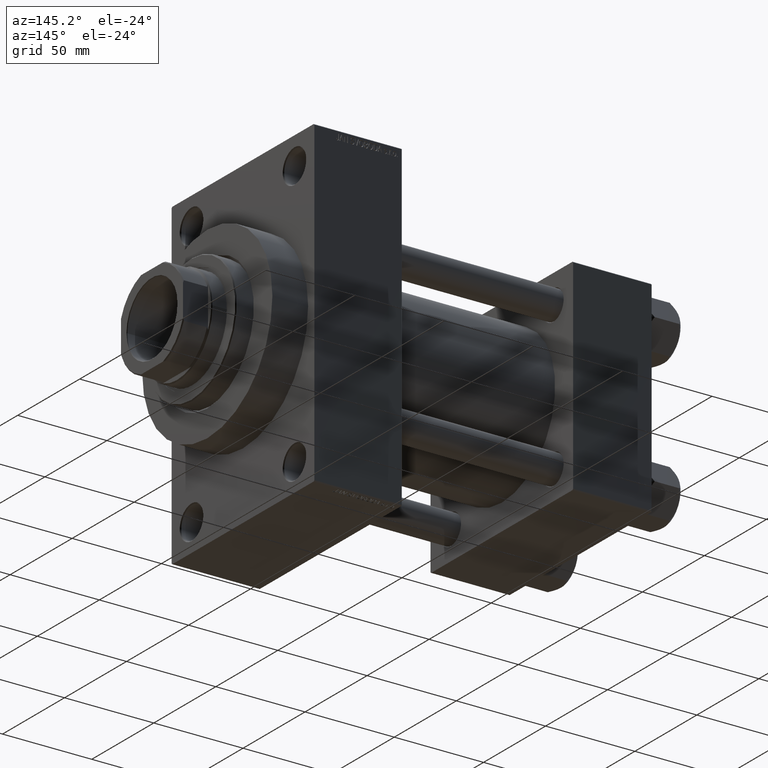
[diagram: clean part render]
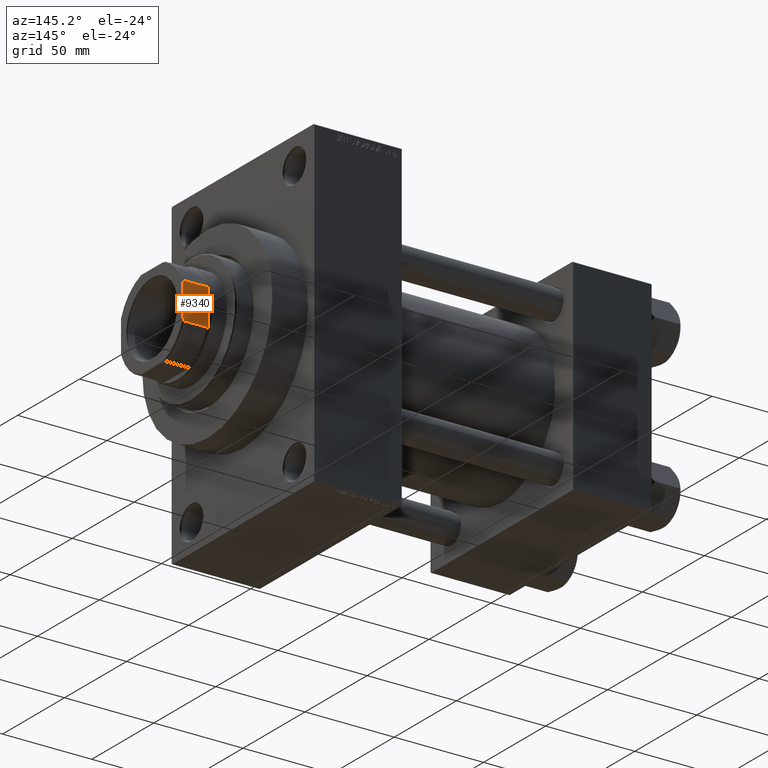
[diagram: same view with one face highlighted and labeled with its STEP entity id]
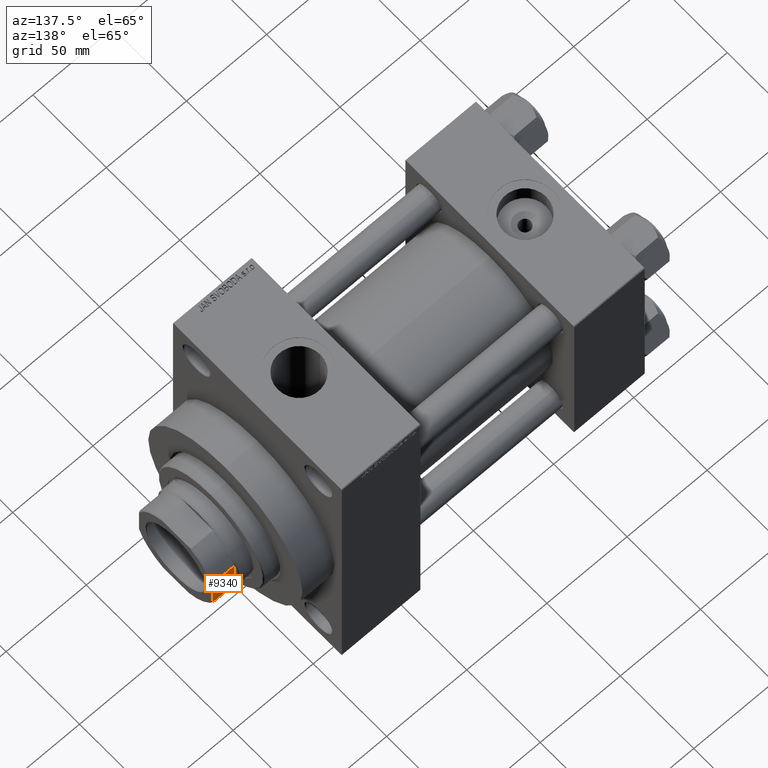
[diagram: same view with one face highlighted and labeled with its STEP entity id]
A machine part, auxiliary view. The second image highlights one B-rep face of the part: STEP entity #9340.
A second angle (auxiliary view) of the same face is appended — the face is thin or edge-on in the first view.
In plain terms, the highlighted planar face has unit normal (0, -1, -0).
Its self-contained STEP definition (entity closure, byte-faithful):
#3082 = CARTESIAN_POINT ( 'NONE',  ( -24.99999999999999645, 8.789197915623416790, 196.0000000000000000 ) ) ;
#3098 = ORIENTED_EDGE ( 'NONE', *, *, #8798, .F. ) ;
#3894 = EDGE_CURVE ( 'NONE', #25982, #38577, #44637, .T. ) ;
#4003 = VERTEX_POINT ( 'NONE', #21948 ) ;
#4118 = ORIENTED_EDGE ( 'NONE', *, *, #21917, .F. ) ;
#4810 = CARTESIAN_POINT ( 'NONE',  ( -24.99999999999999645, -8.789197915623566004, 196.0000000000000000 ) ) ;
#7049 = CARTESIAN_POINT ( 'NONE',  ( -25.00000000000000000, -11.45643923738971459, 182.0000000000000000 ) ) ;
#7313 = DIRECTION ( 'NONE',  ( -0.000000000000000000, -0.000000000000000000, 1.000000000000000000 ) ) ;
#8088 = VERTEX_POINT ( 'NONE', #3082 ) ;
#8798 = EDGE_CURVE ( 'NONE', #8088, #4003, #33835, .T. ) ;
#9051 = ORIENTED_EDGE ( 'NONE', *, *, #42984, .T. ) ;
#9250 = B_SPLINE_CURVE_WITH_KNOTS ( 'NONE', 3,
 ( #7049, #10675, #29006, #31656 ),
 .UNSPECIFIED., .F., .F.,
 ( 4, 4 ),
 ( 0.1765148226053677161, 0.1778433473077455917 ),
 .UNSPECIFIED. ) ;
#9340 = ADVANCED_FACE ( 'NONE', ( #20676 ), #32699, .F. ) ;
#9634 = VERTEX_POINT ( 'NONE', #28320 ) ;
#10113 = CARTESIAN_POINT ( 'NONE',  ( -25.00000000000000000, 11.45643923738971992, 182.0000000000000000 ) ) ;
#10675 = CARTESIAN_POINT ( 'NONE',  ( -25.00000000000000000, -11.03991388447915334, 182.1735235416891783 ) ) ;
#11174 = DIRECTION ( 'NONE',  ( 1.387778780781445676E-16, -1.000000000000000000, 0.000000000000000000 ) ) ;
#11243 = VECTOR ( 'NONE', #11791, 1000.000000000000000 ) ;
#11414 = LINE ( 'NONE', #25187, #15994 ) ;
#11558 = LINE ( 'NONE', #15424, #11243 ) ;
#11791 = DIRECTION ( 'NONE',  ( 1.387778780781445676E-16, -1.000000000000000000, 0.000000000000000000 ) ) ;
#11901 = VECTOR ( 'NONE', #22579, 1000.000000000000000 ) ;
#12690 = B_SPLINE_CURVE_WITH_KNOTS ( 'NONE', 3,
 ( #25743, #44542, #22602, #34157 ),
 .UNSPECIFIED., .F., .F.,
 ( 4, 4 ),
 ( 1.734723475976806902E-18, 0.001494935877430080169 ),
 .UNSPECIFIED. ) ;
#13275 = CARTESIAN_POINT ( 'NONE',  ( -25.00000000000000000, 10.19803902718555655, 195.5000000000000000 ) ) ;
#14235 = VECTOR ( 'NONE', #11174, 1000.000000000000000 ) ;
#14382 = DIRECTION ( 'NONE',  ( 1.000000000000000000, 1.387778780781445922E-16, -0.000000000000000000 ) ) ;
#14805 = B_SPLINE_CURVE_WITH_KNOTS ( 'NONE', 3,
 ( #22933, #19551, #37628, #4810 ),
 .UNSPECIFIED., .F., .F.,
 ( 4, 4 ),
 ( 0.000000000000000000, 0.001494935877429927080 ),
 .UNSPECIFIED. ) ;
#15047 = EDGE_LOOP ( 'NONE', ( #37287, #34495, #3098, #9051, #4118, #17655, #33346, #29544 ) ) ;
#15424 = CARTESIAN_POINT ( 'NONE',  ( -25.00000000000000000, 25.00000000000000000, 182.0000000000000000 ) ) ;
#15994 = VECTOR ( 'NONE', #7313, 1000.000000000000000 ) ;
#17655 = ORIENTED_EDGE ( 'NONE', *, *, #3894, .T. ) ;
#19551 = CARTESIAN_POINT ( 'NONE',  ( -25.00000000000000000, -9.731776668926041651, 195.6761096935718172 ) ) ;
#19667 = VERTEX_POINT ( 'NONE', #47367 ) ;
#20676 = FACE_OUTER_BOUND ( 'NONE', #15047, .T. ) ;
#21917 = EDGE_CURVE ( 'NONE', #25982, #25082, #26431, .T. ) ;
#21948 = CARTESIAN_POINT ( 'NONE',  ( -24.99999999999999645, -8.789197915623566004, 196.0000000000000000 ) ) ;
#22579 = DIRECTION ( 'NONE',  ( -0.000000000000000000, -0.000000000000000000, 1.000000000000000000 ) ) ;
#22602 = CARTESIAN_POINT ( 'NONE',  ( -24.99999999999999645, 9.731776668925991913, 195.6761096935717887 ) ) ;
#22933 = CARTESIAN_POINT ( 'NONE',  ( -25.00000000000000000, -10.19803902718555300, 195.5000000000000284 ) ) ;
#24358 = CARTESIAN_POINT ( 'NONE',  ( -25.00000000000000000, 11.04081745793471470, 182.1731471149840900 ) ) ;
#24523 = DIRECTION ( 'NONE',  ( -1.387778780781445922E-16, 1.000000000000000000, 0.000000000000000000 ) ) ;
#25082 = VERTEX_POINT ( 'NONE', #13275 ) ;
#25187 = CARTESIAN_POINT ( 'NONE',  ( -25.00000000000000000, -10.19803902718555300, -0.001000000000001000089 ) ) ;
#25743 = CARTESIAN_POINT ( 'NONE',  ( -24.99999999999999645, 8.789197915623416790, 196.0000000000000000 ) ) ;
#25826 = CARTESIAN_POINT ( 'NONE',  ( -25.00000000000000000, 10.19803902718555300, 182.5000000000000853 ) ) ;
#25982 = VERTEX_POINT ( 'NONE', #25826 ) ;
#26431 = LINE ( 'NONE', #37277, #11901 ) ;
#27835 = CARTESIAN_POINT ( 'NONE',  ( -25.00000000000000000, -11.45643923738971459, 182.0000000000000000 ) ) ;
#28320 = CARTESIAN_POINT ( 'NONE',  ( -25.00000000000000000, -10.19803902718555300, 195.5000000000000284 ) ) ;
#28416 = EDGE_CURVE ( 'NONE', #38577, #31724, #11558, .T. ) ;
#29006 = CARTESIAN_POINT ( 'NONE',  ( -25.00000000000000000, -10.62054463070014876, 182.3404174580057600 ) ) ;
#29544 = ORIENTED_EDGE ( 'NONE', *, *, #44494, .T. ) ;
#31573 = CARTESIAN_POINT ( 'NONE',  ( -25.00000000000000000, 10.19803902718555300, 182.5000000000000853 ) ) ;
#31656 = CARTESIAN_POINT ( 'NONE',  ( -25.00000000000000000, -10.19803902718555300, 182.5000000000000853 ) ) ;
#31724 = VERTEX_POINT ( 'NONE', #27835 ) ;
#32699 = PLANE ( 'NONE',  #35033 ) ;
#33184 = CARTESIAN_POINT ( 'NONE',  ( -25.00000000000000000, 11.45643923738971992, 182.0000000000000000 ) ) ;
#33346 = ORIENTED_EDGE ( 'NONE', *, *, #28416, .T. ) ;
#33835 = LINE ( 'NONE', #37918, #14235 ) ;
#34157 = CARTESIAN_POINT ( 'NONE',  ( -25.00000000000000000, 10.19803902718555655, 195.5000000000000000 ) ) ;
#34495 = ORIENTED_EDGE ( 'NONE', *, *, #36599, .T. ) ;
#35033 = AXIS2_PLACEMENT_3D ( 'NONE', #47411, #14382, #24523 ) ;
#36599 = EDGE_CURVE ( 'NONE', #9634, #4003, #14805, .T. ) ;
#36948 = EDGE_CURVE ( 'NONE', #19667, #9634, #11414, .T. ) ;
#37277 = CARTESIAN_POINT ( 'NONE',  ( -25.00000000000000000, 10.19803902718555655, -0.001000000000001000089 ) ) ;
#37287 = ORIENTED_EDGE ( 'NONE', *, *, #36948, .T. ) ;
#37628 = CARTESIAN_POINT ( 'NONE',  ( -24.99999999999999645, -9.262276112429480790, 195.8430951735360850 ) ) ;
#37918 = CARTESIAN_POINT ( 'NONE',  ( -25.00000000000000000, 25.00000000000000000, 196.0000000000000000 ) ) ;
#38577 = VERTEX_POINT ( 'NONE', #33184 ) ;
#42984 = EDGE_CURVE ( 'NONE', #8088, #25082, #12690, .T. ) ;
#44494 = EDGE_CURVE ( 'NONE', #31724, #19667, #9250, .T. ) ;
#44542 = CARTESIAN_POINT ( 'NONE',  ( -24.99999999999999645, 9.262276112429379538, 195.8430951735360850 ) ) ;
#44637 = B_SPLINE_CURVE_WITH_KNOTS ( 'NONE', 3,
 ( #31573, #46290, #24358, #10113 ),
 .UNSPECIFIED., .F., .F.,
 ( 4, 4 ),
 ( 0.1494494674490440267, 0.1507722707443672483 ),
 .UNSPECIFIED. ) ;
#46290 = CARTESIAN_POINT ( 'NONE',  ( -25.00000000000000000, 10.62149574817004627, 182.3400582160399495 ) ) ;
#47367 = CARTESIAN_POINT ( 'NONE',  ( -25.00000000000000000, -10.19803902718555300, 182.5000000000000853 ) ) ;
#47411 = CARTESIAN_POINT ( 'NONE',  ( -25.00000000000000000, 25.00000000000000000, 196.0000000000000000 ) ) ;